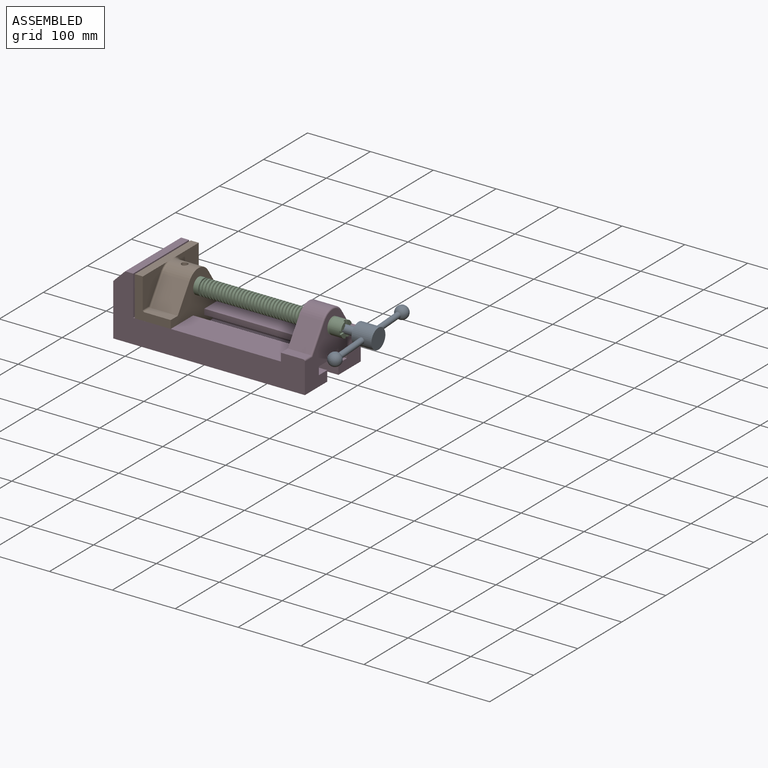
[diagram: assembled view]
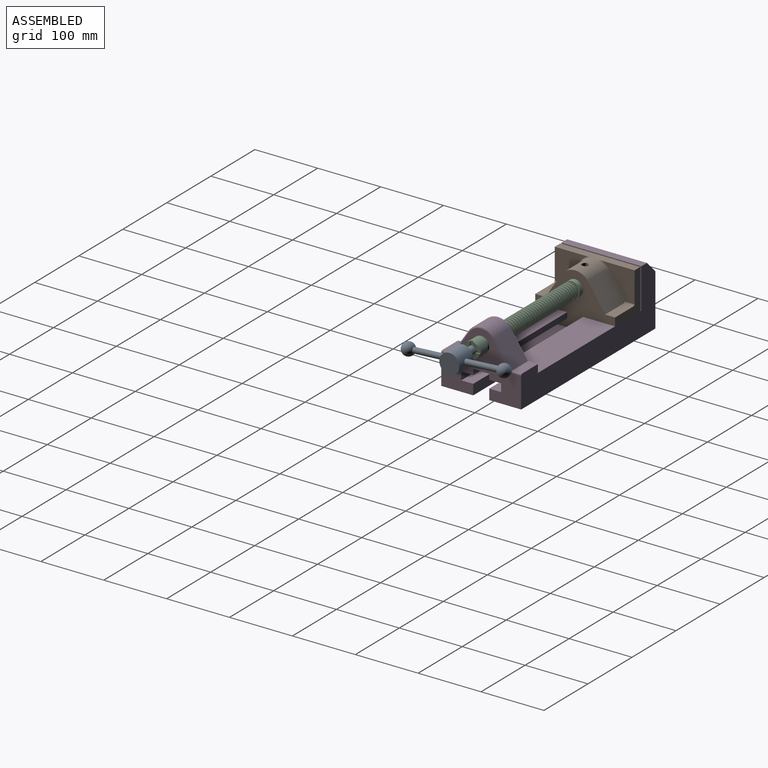
[diagram: assembled view, second angle]
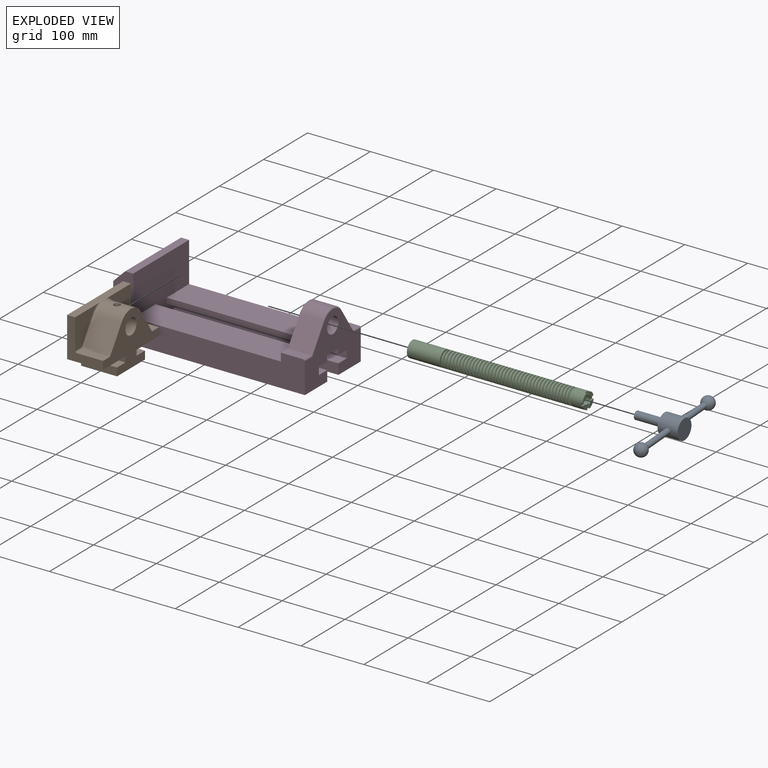
[diagram: exploded view]
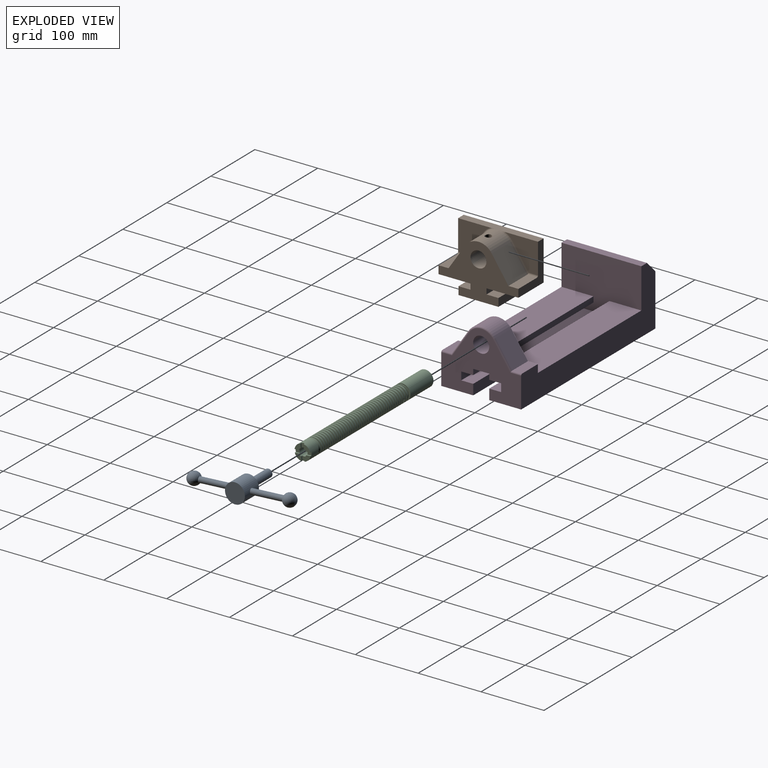
[diagram: exploded view, second angle]
ASSEMBLY  parts=4 mates=3
PART A: 9 faces, bbox 172.7x31.8x76.2 mm
  f0: cylinder r=4.45mm len=51.82mm, axis (1,0,0), area 1438.5mm2, adj f1,f8
  f1: cylinder r=15.88mm len=31.75mm, axis (0,0,-1), area 3041.4mm2, adj f0,f2,f3,f6
  f2: plane 31.75x31.75mm, normal (0,0,1), area 791.7mm2, adj f1
  f3: plane 31.75x31.75mm, normal (0,0,-1), area 665.1mm2, adj f1,f4
  f4: cylinder r=6.35mm len=44.45mm, axis (0,0,1), area 1773.5mm2, adj f3,f5
  f5: plane 12.7x12.7mm, normal (0,0,-1), area 126.7mm2, adj f4
  f6: cylinder r=4.45mm len=51.82mm, axis (1,0,0), area 1438.5mm2, adj f1,f7
  f7: sphere r=10.16mm, area 1231.8mm2, adj f6
  f8: sphere r=10.16mm, area 1231.8mm2, adj f0
PART B: 32 faces, bbox 127x57.2x89 mm
  f0: plane 57.15x50.8mm, normal (0,0,-1), area 2903.2mm2, adj f12,f14,f17,f20
  f1: plane 41.91x39.55mm, normal (0.83,0,0.56), area 1996mm2, adj f2,f16,f17,f27
  f2: cylinder r=25.4mm len=44.45mm, axis (0,1,0), area 2026.4mm2, adj f1,f3,f17,f18,f24,f26,f30,f31
  f3: plane 41.91x39.55mm, normal (-0.83,0,0.56), area 1996mm2, adj f2,f4,f17,f29
  f4: plane 41.91x15.88mm, normal (0,0,1), area 665.3mm2, adj f3,f5,f17,f28
  f5: plane 63.5x57.15mm, normal (-1,0,0), area 1372.3mm2, adj f4,f13,f17,f19,f20,f21,f28
  f6: plane 57.15x8.89mm, normal (-1,0,0), area 508.1mm2, adj f7,f13,f17,f20
  f7: plane 57.15x19.05mm, normal (0,0,1), area 1088.7mm2, adj f6,f8,f17,f20
  f8: plane 57.15x12.7mm, normal (-1,0,0), area 725.8mm2, adj f7,f9,f17,f20
  f9: plane 63.5x57.15mm, normal (0,0,-1), area 3629mm2, adj f8,f10,f17,f20
  f10: plane 57.15x12.7mm, normal (1,0,0), area 725.8mm2, adj f9,f11,f17,f20
  f11: plane 57.15x19.05mm, normal (0,0,1), area 1088.7mm2, adj f10,f12,f17,f20
  f12: plane 57.15x8.89mm, normal (1,0,0), area 508.1mm2, adj f0,f11,f17,f20
  f13: plane 57.15x50.8mm, normal (0,0,-1), area 2903.2mm2, adj f5,f6,f17,f20
  f14: plane 63.5x57.15mm, normal (1,0,0), area 1372.3mm2, adj f0,f16,f17,f20,f21,f22,f25
  f15: cylinder r=12.7mm len=44.45mm, axis (0,1,0), area 3464.2mm2, adj f17,f18,f23
  f16: plane 41.91x15.88mm, normal (0,0,1), area 665.3mm2, adj f1,f14,f17,f25
  f17: plane 127x85.09mm, normal (0,-1,0), area 5190mm2, adj f0,f1,f2,f3,f4,f5,f6,f7
  f18: cylinder r=5.08mm len=13.76mm, axis (0,0,1), area 414mm2, adj f2,f15
  f19: plane 51.86x48.26mm, normal (0,-1,0), area 1495.7mm2, adj f5,f21,f28,f29,f30
  f20: plane 127x85.09mm, normal (0,1,0), area 9096.8mm2, adj f0,f5,f6,f7,f8,f9,f10,f11
  f21: plane 127x12.7mm, normal (0,0,1), area 1612.9mm2, adj f5,f14,f19,f20,f22,f24,f31
  f22: plane 51.86x48.26mm, normal (0,-1,0), area 1495.7mm2, adj f14,f21,f25,f26,f27
  f23: plane 25.4x25.4mm, normal (0,-1,0), area 506.7mm2, adj f15
  f24: bspline ~12.24x2.8mm, area 20.9mm2, adj f2,f21,f26
  f25: cylinder r=2.54mm len=15.88mm, axis (-1,0,0), area 61.4mm2, adj f14,f16,f22,f27
  f26: torus R=27.94mm, axis (0,-1,0), area 57.8mm2, adj f2,f22,f24,f27
  f27: cylinder r=2.54mm len=40.97mm, axis (-0.56,0,0.83), area 188.1mm2, adj f1,f22,f25,f26
  f28: cylinder r=2.54mm len=15.88mm, axis (-1,0,0), area 61.4mm2, adj f4,f5,f19,f29
  f29: cylinder r=2.54mm len=40.97mm, axis (-0.56,0,-0.83), area 188.1mm2, adj f3,f19,f28,f30
  f30: torus R=27.94mm, axis (0,-1,0), area 57.8mm2, adj f2,f19,f29,f31
  f31: bspline ~12.24x2.8mm, area 20.9mm2, adj f2,f21,f30
PART C: 30 faces, bbox 279.4x29.3x25.4 mm
  f0: plane 9.9x9.9mm, normal (-1,0,0), area 62.3mm2, adj f10,f14,f22,f25
  f1: plane 9.9x9.9mm, normal (-1,0,0), area 62.3mm2, adj f10,f13,f19,f25
  f2: plane 9.9x9.9mm, normal (-1,0,0), area 62.3mm2, adj f10,f16,f20,f25
  f3: cylinder r=12.7mm len=202.82mm, axis (-1,0,0), area 8061.8mm2, adj f4,f5,f8,f9
  f4: cone r=12.7mm half-angle=45deg, axis (1,0,0), area 203.6mm2, adj f3,f6,f8,f11
  f5: cone r=10.16mm half-angle=45deg, axis (-1,0,0), area 159.7mm2, adj f3,f8,f9,f28
  f6: plane 2.27x2.04mm, normal (0,-0.89,-0.45), area 2.3mm2, adj f4,f7,f8,f9
  f7: cylinder r=10.16mm len=207.27mm, axis (-1,0,0), area 5146.6mm2, adj f6,f8,f9,f28
  f8: bspline ~208.92x29.33mm, area 7604.7mm2, adj f3,f4,f5,f6,f7
  f9: bspline ~206.63x25.36mm, area 7608mm2, adj f3,f5,f6,f7
  f10: cylinder r=12.7mm len=25.4mm, axis (-1,0,0), area 1468.2mm2, adj f0,f1,f2,f11,f12,f13,f14,f15
  f11: plane 25.4x25.4mm, normal (1,0,0), area 182.4mm2, adj f4,f10
  f12: plane 9.9x9.9mm, normal (-1,0,0), area 62.3mm2, adj f10,f17,f23,f25
  f13: plane 6.62x2.54mm, normal (0,1,0), area 16.8mm2, adj f1,f10,f15,f25
  f14: plane 6.62x2.54mm, normal (0,-1,0), area 16.8mm2, adj f0,f10,f15,f25
  f15: plane 6.88x5.08mm, normal (-1,0,0), area 32.7mm2, adj f10,f13,f14,f25
  f16: plane 6.62x2.54mm, normal (0,1,0), area 16.8mm2, adj f2,f10,f18,f25
  f17: plane 6.62x2.54mm, normal (0,-1,0), area 16.8mm2, adj f10,f12,f18,f25
  f18: plane 6.88x5.08mm, normal (-1,0,0), area 32.7mm2, adj f10,f16,f17,f25
  f19: plane 6.62x2.54mm, normal (0,0,-1), area 16.8mm2, adj f1,f10,f21,f25
  f20: plane 6.62x2.54mm, normal (0,0,1), area 16.8mm2, adj f2,f10,f21,f25
  f21: plane 6.88x5.08mm, normal (-1,0,0), area 32.7mm2, adj f10,f19,f20,f25
  f22: plane 6.62x2.54mm, normal (0,0,-1), area 16.8mm2, adj f0,f10,f24,f25
  f23: plane 6.62x2.54mm, normal (0,0,1), area 16.8mm2, adj f10,f12,f24,f25
  f24: plane 6.88x5.08mm, normal (-1,0,0), area 32.7mm2, adj f10,f22,f23,f25
  f25: cylinder r=6.35mm len=25.4mm, axis (-1,0,0), area 960.3mm2, adj f0,f1,f2,f12,f13,f14,f15,f16
  f26: plane 12.7x12.7mm, normal (-1,0,0), area 126.7mm2, adj f25
  f27: cylinder r=12.7mm len=52.45mm, axis (1,0,0), area 4185.4mm2, adj f28,f29
  f28: plane 25.4x25.4mm, normal (-1,0,0), area 182.4mm2, adj f5,f7,f27
  f29: plane 25.4x25.4mm, normal (1,0,0), area 506.7mm2, adj f27
PART D: 33 faces, bbox 304.8x127x103.7 mm
  f0: plane 127x99.06mm, normal (1,0,0), area 7095.3mm2, adj f2,f9,f10,f11,f12,f13,f14,f15
  f1: plane 127x63.5mm, normal (-1,0,0), area 4157.7mm2, adj f3,f7,f9,f10,f11,f22,f23,f24
  f2: plane 304.8x127mm, normal (0,0,-1), area 31774.1mm2, adj f0,f6,f8,f9,f10,f12,f13
  f3: plane 234.95x50.8mm, normal (0,0,1), area 11935.5mm2, adj f1,f8,f10,f17
  f4: plane 127x12.7mm, normal (0,0,1), area 1612.9mm2, adj f5,f8,f9,f10
  f5: plane 127x19.05mm, normal (-0.71,0,0.71), area 3421.5mm2, adj f4,f6,f9,f10
  f6: plane 127x82.55mm, normal (-1,0,0), area 10483.8mm2, adj f2,f5,f9,f10
  f7: plane 234.95x50.8mm, normal (0,0,1), area 11935.5mm2, adj f1,f8,f9,f18
  f8: plane 127x101.6mm, normal (1,0,0), area 9516.1mm2, adj f2,f3,f4,f7,f9,f10,f12,f13
  f9: plane 304.8x101.6mm, normal (0,-1,0), area 13930mm2, adj f0,f1,f2,f4,f5,f6,f7,f8
  f10: plane 304.8x101.6mm, normal (0,1,0), area 13930mm2, adj f0,f1,f2,f3,f4,f5,f6,f8
  f11: plane 38.1x25.4mm, normal (0,0,-1), area 967.7mm2, adj f0,f1,f17,f18
  f12: plane 273.05x16.51mm, normal (0,1,0), area 4508.1mm2, adj f0,f2,f8,f21
  f13: plane 273.05x16.51mm, normal (0,-1,0), area 4508.1mm2, adj f0,f2,f8,f14
  f14: plane 273.05x19.05mm, normal (0,0,1), area 5201.6mm2, adj f0,f8,f13,f15
  f15: plane 273.05x12.7mm, normal (0,-1,0), area 3467.7mm2, adj f0,f8,f14,f16
  f16: plane 273.05x19.05mm, normal (0,0,-1), area 5201.6mm2, adj f0,f8,f15,f17
  f17: plane 273.05x8.89mm, normal (0,-1,0), area 2427.4mm2, adj f0,f3,f8,f11,f16
  f18: plane 273.05x8.89mm, normal (0,1,0), area 2427.4mm2, adj f0,f7,f8,f11,f19
  f19: plane 273.05x19.05mm, normal (0,0,-1), area 5201.6mm2, adj f0,f8,f18,f20
  f20: plane 273.05x12.7mm, normal (0,1,0), area 3467.7mm2, adj f0,f8,f19,f21
  f21: plane 273.05x19.05mm, normal (0,0,1), area 5201.6mm2, adj f0,f8,f12,f20
  f22: cylinder r=12.7mm len=38.1mm, axis (1,0,0), area 3040.2mm2, adj f0,f1
  f23: plane 35.56x15.88mm, normal (0,0,1), area 564.5mm2, adj f1,f9,f24,f32
  f24: plane 39.55x35.56mm, normal (0,-0.83,0.56), area 1693.5mm2, adj f1,f23,f25,f28
  f25: cylinder r=25.4mm len=42.19mm, axis (1,0,0), area 1770.2mm2, adj f1,f24,f26,f29
  f26: plane 39.55x35.56mm, normal (0,0.83,0.56), area 1693.5mm2, adj f1,f25,f27,f30
  f27: plane 35.56x15.88mm, normal (0,0,1), area 564.5mm2, adj f1,f10,f26,f31
  f28: cylinder r=2.54mm len=42.09mm, axis (0,-0.56,-0.83), area 192mm2, adj f0,f24,f29,f32
  f29: torus R=22.86mm, axis (1,0,0), area 191.4mm2, adj f0,f25,f28,f30
  f30: cylinder r=2.54mm len=42.09mm, axis (0,-0.56,0.83), area 192mm2, adj f0,f26,f29,f31
  f31: cylinder r=2.54mm len=17.23mm, axis (0,-1,0), area 65.3mm2, adj f0,f10,f27,f30
  f32: cylinder r=2.54mm len=17.23mm, axis (0,-1,0), area 65.3mm2, adj f0,f9,f23,f28
PLACE A rot(axis=(0.59,0.55,0.59),122.1deg) t=(209.42,-11.75,200.52)mm
PLACE B rot(axis=(0,0,1),90deg) t=(-89.03,-11.75,140.83)mm
PLACE C rot(axis=(0,0.68,0.73),180deg) t=(190.37,-11.75,200.52)mm
PLACE D t=(-136.07,-11.75,124.32)mm fixed
MATE slider D.f8 <-> B.f20  axis (1,0,0) through (-104.32,-75.25,162.42)mm
MATE revolute B.f2 <-> C.f3  axis (-1,0,0) through (-89.03,-11.75,200.52)mm
MATE fastened C.f3 <-> A.f1  axis (1,0,0) through (164.97,-11.75,200.52)mm
